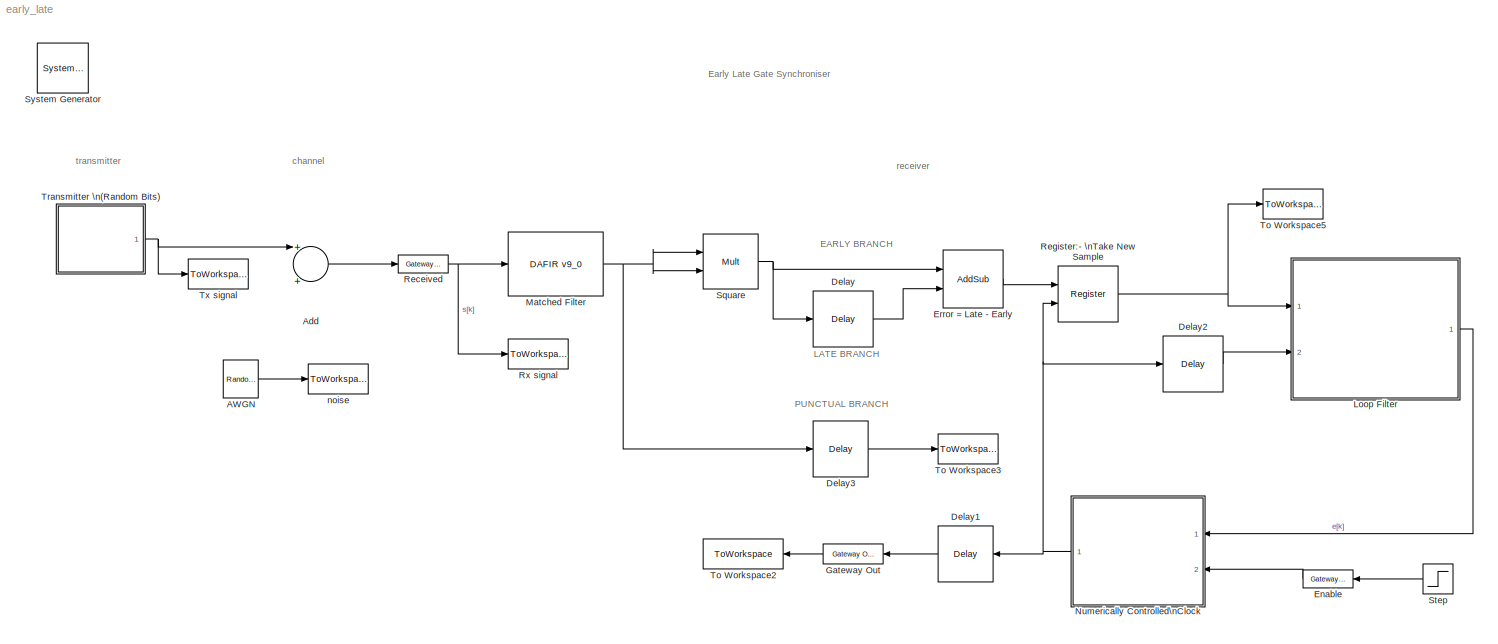
MODEL early_late
KIND model
CONFIG PreLoadFcn = Fs = 1;
CONFIG StopFcn = figure(1)\nplot(ted_output);\nlegend('Timing Error Detector Output',1);\nxlabel('Samples');\nylabel('Amplitude');\n\nfigure(2)\nhold off\nplot(Vss_nom,'b');\nhold on\nplot(Vss,'r');\nlegend('Nominal SS', 'Adj. SS',0);\nxlabel('Samples');\nylabel('Step Size');\n\nfigure(3)\nhold off\nplot(mf_signal,'k-');\nhold on\nplot(sample_points,'r-o');\nplot(zeros(1,length(mf_signal)),'k--');\nlegend('Input',...<+126ch>
BLOCK [Reference]  System Generator  REF=xbsIndex_r4/ System Generator
  AttributesFormatString = System\\nGenerator
  FunctionWithSeparateData = off
  Ports = []
  RTWMemSecDataConstants = Inherit from model
  RTWMemSecDataInternal = Inherit from model
  RTWMemSecDataParameters = Inherit from model
  RTWMemSecFuncExecute = Inherit from model
  RTWMemSecFuncInitTerm = Inherit from model
  ShowPortLabels = FromPortIcon
  SourceBlock = xbsIndex_r4/ System Generator
  SourceType = Xilinx System Generator Block
  SystemSampleTime = -1
  Tag = genX
  UserData = DataTag0
  UserDataPersistent = on
  block_type = sysgen
  block_version = 9.2.01
  clock_wrapper = Clock Enables
  core_generation = According to Block Masks
  dbl_ovrd = According to Block Masks
  dcm_input_clock_period = 100
  deprecated_control = off
  directory = ./netlist
  eval_field = 0
  has_advanced_control = 0
  incr_netlist = off
  infoedit = System Generator
  package = ff668
  part = xc4vsx35
  run_coregen = off
  sg_icon_stat = 51,50,-1,-1,red,beige,0,07734
  sg_mask_display = fprintf('','COMMENT: begin icon graphics');\npatch([0 51 51 0 ],[0 0 50 50 ],[0.93 0.92 0.86]);\npatch([12 4 16 4 12 25 29 33 47 36 25 17 29 17 25 36 47 33 29 25 12 ],[5 13 25 37 45 45 41 45 45 34 45 37 25 13 5 16 5 5 9 5 5 ],[0.6 0.2 0.25]);\nplot([0 0 51 51 0 ],[0 50 50 0 0 ]);\nfprintf('','COMMENT: end icon graphics');\nfprintf('','COMMENT: begin icon text');\nfprintf('','COMMENT: end icon text...<+5ch>
  sggui_pos = -1,-1,-1,-1
  simulink_period = 1/Fs
  speed = -10
  synthesis_tool = XST
  sysclk_period = 10
  testbench = off
  trim_vbits = Everywhere in SubSystem
  xilinxfamily = virtex4
BLOCK [Reference] AWGN  REF=dspsrcs4/Random\nSource
  CltLength = 12
  DataType = Single
  Diagnostics = AllowInheritedTsInSrc
  IsInherit = on
  MaxVal = 1
  MeanVal = 0
  MinVal = 0
  NormMethod = Ziggurat
  OutComplex = Real
  Ports = [0, 1]
  RepMode = Not repeatable
  SampFrame = 1
  SampMode = Discrete
  SampTime = 1
  SourceBlock = dspsrcs4/Random\nSource
  SourceType = Random Source
  SrcType = Gaussian
  UserData = DataTag1
  UserDataPersistent = on
  VarVal = 0.2
  rawSeed = 1
BLOCK [Sum] Add
  CollapseMode = All dimensions
  InputSameDT = off
  OutDataTypeMode = double
  OutScaling = 2^-10
  Ports = [2, 1]
  SaturateOnIntegerOverflow = off
BLOCK [Reference] Delay  REF=xbsIndex_r4/Delay
  Ports = [1, 1]
  SourceBlock = xbsIndex_r4/Delay
  SourceType = Xilinx Delay Block
  block_type = delay
  block_version = 9.2.01
  dbl_ovrd = off
  en = off
  has_advanced_control = 0
  infoedit = Hardware notes: A delay line is a chain, each link of which is an SRL16 followed by a flip-flop.
  latency = 10
  reg_retiming = off
  sg_icon_stat = 60,56,1,1,white,blue,0,fc1feff4,right
  sg_mask_display = fprintf('','COMMENT: begin icon graphics');\npatch([0 60 60 0 ],[0 0 56 56 ],[0.77 0.82 0.91]);\npatch([15 6 19 6 15 30 34 38 54 41 29 20 32 20 29 41 54 38 34 30 15 ],[6 15 28 41 50 50 46 50 50 37 49 40 28 16 7 19 6 6 10 6 6 ],[0.98 0.96 0.92]);\nplot([0 60 60 0 0 ],[0 0 56 56 0 ]);\nfprintf('','COMMENT: end icon graphics');\nfprintf('','COMMENT: begin icon text');\ncolor('black');disp('z^{-10}','...<+56ch>
  sggui_pos = 20,20,348,255
  xl_area = [0,0,0,0,0,0,0]
  xl_use_area = off
BLOCK [Reference] Delay1  REF=xbsIndex_r4/Delay
  Ports = [1, 1]
  SourceBlock = xbsIndex_r4/Delay
  SourceType = Xilinx Delay Block
  block_type = delay
  block_version = 9.2.01
  dbl_ovrd = off
  en = off
  has_advanced_control = 0
  infoedit = Hardware notes: A delay line is a chain, each link of which is an SRL16 followed by a flip-flop.
  latency = 10
  reg_retiming = off
  sg_icon_stat = 55,56,1,1,white,blue,0,fc1feff4,left
  sg_mask_display = fprintf('','COMMENT: begin icon graphics');\npatch([0 60 60 0 ],[0 0 56 56 ],[0.77 0.82 0.91]);\npatch([15 6 19 6 15 30 34 38 54 41 29 20 32 20 29 41 54 38 34 30 15 ],[6 15 28 41 50 50 46 50 50 37 49 40 28 16 7 19 6 6 10 6 6 ],[0.98 0.96 0.92]);\nplot([0 60 60 0 0 ],[0 0 56 56 0 ]);\nfprintf('','COMMENT: end icon graphics');\nfprintf('','COMMENT: begin icon text');\ncolor('black');disp('z^{-10}','...<+56ch>
  sggui_pos = 20,20,348,255
  xl_area = [0,0,0,0,0,0,0]
  xl_use_area = off
BLOCK [Reference] Delay2  REF=xbsIndex_r4/Delay
  Ports = [1, 1]
  SourceBlock = xbsIndex_r4/Delay
  SourceType = Xilinx Delay Block
  block_type = delay
  block_version = 9.2.01
  dbl_ovrd = off
  en = off
  has_advanced_control = 0
  infoedit = Hardware notes: A delay line is a chain, each link of which is an SRL16 followed by a flip-flop.
  latency = 1
  reg_retiming = off
  sg_icon_stat = 60,56,1,1,white,blue,0,fc531c0e,right
  sg_mask_display = fprintf('','COMMENT: begin icon graphics');\npatch([0 60 60 0 ],[0 0 56 56 ],[0.77 0.82 0.91]);\npatch([15 6 19 6 15 30 34 38 54 41 29 20 32 20 29 41 54 38 34 30 15 ],[6 15 28 41 50 50 46 50 50 37 49 40 28 16 7 19 6 6 10 6 6 ],[0.98 0.96 0.92]);\nplot([0 60 60 0 0 ],[0 0 56 56 0 ]);\nfprintf('','COMMENT: end icon graphics');\nfprintf('','COMMENT: begin icon text');\ncolor('black');disp('z^{-1}','t...<+55ch>
  sggui_pos = 20,20,348,255
  xl_area = [0,0,0,0,0,0,0]
  xl_use_area = off
BLOCK [Reference] Delay3  REF=xbsIndex_r4/Delay
  Ports = [1, 1]
  SourceBlock = xbsIndex_r4/Delay
  SourceType = Xilinx Delay Block
  block_type = delay
  block_version = 9.2.01
  dbl_ovrd = off
  en = off
  has_advanced_control = 0
  infoedit = Hardware notes: A delay line is a chain, each link of which is an SRL16 followed by a flip-flop.
  latency = 5
  reg_retiming = off
  sg_icon_stat = 55,56,1,1,white,blue,0,4edfc01c,right
  sg_mask_display = fprintf('','COMMENT: begin icon graphics');\npatch([0 60 60 0 ],[0 0 56 56 ],[0.77 0.82 0.91]);\npatch([15 6 19 6 15 30 34 38 54 41 29 20 32 20 29 41 54 38 34 30 15 ],[6 15 28 41 50 50 46 50 50 37 49 40 28 16 7 19 6 6 10 6 6 ],[0.98 0.96 0.92]);\nplot([0 60 60 0 0 ],[0 0 56 56 0 ]);\nfprintf('','COMMENT: end icon graphics');\nfprintf('','COMMENT: begin icon text');\ncolor('black');disp('z^{-5}','t...<+55ch>
  sggui_pos = 20,20,348,255
  xl_area = [0,0,0,0,0,0,0]
  xl_use_area = off
BLOCK [Reference] Enable  REF=xbsIndex_r4/Gateway In
  LOCs = {}
  Ports = [1, 1]
  SourceBlock = xbsIndex_r4/Gateway In
  SourceType = Xilinx Gateway In Block
  arith_type = Boolean
  bin_pt = 14
  block_type = gatewayin
  block_version = 9.2.01
  dbl_ovrd = off
  has_advanced_control = 0
  infoedit = Gateway in block.  Converts inputs of type Simulink integer, double and fixed point to  Xilinx fixed point type.<P><P>Hardware notes:  In hardware these blocks become top level input ports.
  locs_specified = off
  n_bits = 16
  overflow = Saturate
  period = 1/Fs
  quantization = Round  (unbiased: +/- Inf)
  sg_icon_stat = 50,18,1,1,white,yellow,0,bc55d28f,left
  sg_mask_display = fprintf('','COMMENT: begin icon graphics');\npatch([0 65 65 0 ],[0 0 20 20 ],[0.95 0.93 0.65]);\npatch([27 24 29 24 27 32 33 34 40 36 32 29 34 29 32 36 40 34 33 32 27 ],[2 5 10 15 18 18 17 18 18 14 18 15 10 5 2 6 2 2 3 2 2 ],[0.98 0.96 0.92]);\nplot([0 65 65 0 0 ],[0 0 20 20 0 ]);\nfprintf('','COMMENT: end icon graphics');\nfprintf('','COMMENT: begin icon text');\ncolor('black');port_label('input'...<+131ch>
  sggui_pos = 20,20,348,406
  timing_constraint = None
  xl_area = [0,0,0,0,0,0,0]
  xl_use_area = off
BLOCK [Reference] Error = Late - Early  REF=xbsIndex_r4/AddSub
  Ports = [2, 1]
  SourceBlock = xbsIndex_r4/AddSub
  SourceType = Xilinx Adder/Subtractor Block
  arith_type = Unsigned
  bin_pt = 14
  block_type = addsub
  block_version = 9.2.01
  dbl_ovrd = off
  en = off
  has_advanced_control = 0
  latency = 0
  mode = Subtraction
  n_bits = 16
  overflow = Wrap
  pipelined = off
  precision = Full
  quantization = Truncate
  sg_icon_stat = 60,58,1,1,white,blue,0,46b4c804,right
  sg_mask_display = fprintf('','COMMENT: begin icon graphics');\npatch([0 60 60 0 ],[0 0 58 58 ],[0.77 0.82 0.91]);\npatch([15 5 19 5 15 30 34 38 54 41 29 20 34 20 29 41 54 38 34 30 15 ],[6 16 30 44 54 54 50 54 54 41 53 44 30 16 7 19 6 6 10 6 6 ],[0.98 0.96 0.92]);\nplot([0 60 60 0 0 ],[0 0 58 58 0 ]);\nfprintf('','COMMENT: end icon graphics');\nfprintf('','COMMENT: begin icon text');\ncolor('black');port_label('inpu...<+163ch>  <repeated x5 — deduplicated; at blocks: Error = Late - Early, Add, AddSub, AddSub1, a - b3>
  sggui_pos = 20,20,348,307
  use_behavioral_HDL = off
  use_carryin = off
  use_carryout = off
  use_rpm = on
  xl_area = [0,0,0,0,0,0,0]
  xl_use_area = off
BLOCK [Reference] Gateway Out  REF=xbsIndex_r4/Gateway Out
  LOCs = {}
  Ports = [1, 1]
  SourceBlock = xbsIndex_r4/Gateway Out
  SourceType = Xilinx Gateway Out Block
  block_type = gatewayout
  block_version = 9.2.01
  has_advanced_control = 0
  hdl_port = on
  infoedit = Gateway out block.  Converts Xilinx fixed point inputs into ouputs of type Simulink integer, double, or fixed point.<P><P>Hardware notes:  In hardware these blocks become top level output ports or are discarded, depending on how they are configured.
  locs_specified = off
  sg_icon_stat = 60,20,1,1,white,yellow,0,38220381,left
  sg_mask_display = fprintf('','COMMENT: begin icon graphics');\npatch([0 60 60 0 ],[0 0 20 20 ],[0.95 0.93 0.65]);\npatch([24 21 26 21 24 29 30 31 37 33 29 26 31 26 29 33 37 31 30 29 24 ],[2 5 10 15 18 18 17 18 18 14 18 15 10 5 2 6 2 2 3 2 2 ],[0.98 0.96 0.92]);\nplot([0 60 60 0 0 ],[0 0 20 20 0 ]);\nfprintf('','COMMENT: end icon graphics');\nfprintf('','COMMENT: begin icon text');\ncolor('black');port_label('input'...<+132ch>
  sggui_pos = -1,-1,-1,-1
  timing_constraint = None
  xl_area = [0,0,0,0,0,0,0]
  xl_use_area = off
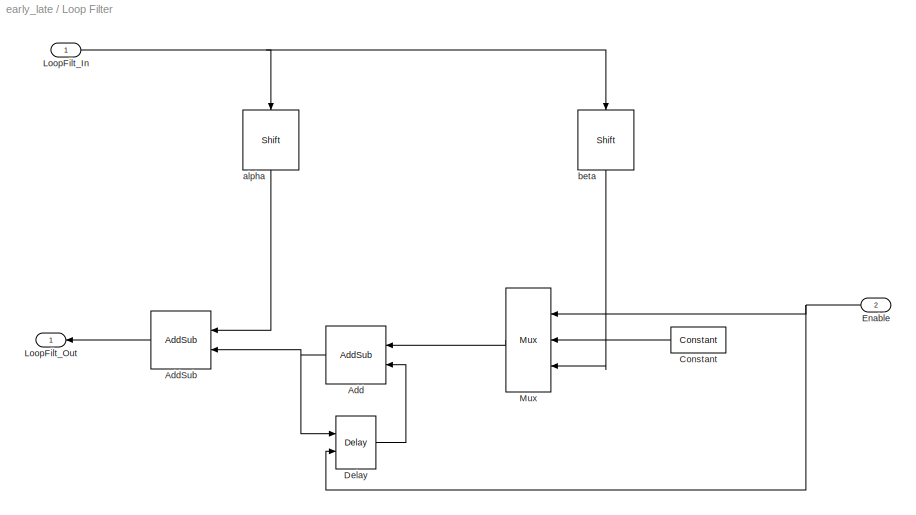
BLOCK [SubSystem] Loop Filter
  FunctionWithSeparateData = off
  MaskCallbackString = |||
  MaskDescription = The loop filter contains two paths: a proportional path and an integral path. These are characterised by coefficients Alpha and Beta, respectively. Multiplications by these coefficients are both realised via shifts, for hardware efficiency reasons.\n\nMask to be completed... not yet straight on the wordlength implications and the choices that should be presented via the mask.
  MaskEnableString = on,on,on,on
  MaskHideContents = off
  MaskIconFrame = on
  MaskIconOpaque = on
  MaskIconRotate = none
  MaskIconUnits = autoscale
  MaskInitialization = if extend_wl == true\n    alpha_shift_wl = phase_det_word + alpha_n;\n    beta_shift_wl = phase_det_word + beta_n;\nelse\n    alpha_shift_wl = phase_det_word;\n    beta_shift_wl = phase_det_word;\nend
  MaskPromptString = Alpha (bits to shift right by)|Beta (bits to shift right by)|Input wordlength|Retain full precision?
  MaskStyleString = edit,edit,edit,checkbox
  MaskTabNameString = ,,,
  MaskToolTipString = on,on,on,on
  MaskTunableValueString = on,on,on,on
  MaskType = Loop Filter Parameters
  MaskValueString = 3|7|16|on
  MaskVarAliasString = ,,,
  MaskVariables = alpha_n=@1;beta_n=@2;phase_det_word=@3;extend_wl=@4;
  MaskVisibilityString = on,on,on,on
  MinAlgLoopOccurrences = off
  Ports = [2, 1]
  RTWSystemCode = Auto
BLOCK [Reference] Loop Filter/Add  REF=xbsIndex_r4/AddSub
  Ports = [2, 1]
  SourceBlock = xbsIndex_r4/AddSub
  SourceType = Xilinx Adder/Subtractor Block
  arith_type = Signed  (2's comp)
  bin_pt = 20
  block_type = addsub
  block_version = 9.2.01
  dbl_ovrd = off
  en = off
  has_advanced_control = 0
  latency = 0
  mode = Addition
  n_bits = 40
  overflow = Wrap
  pipelined = off
  precision = User Defined
  quantization = Round  (unbiased: +/- Inf)
  sg_icon_stat = 60,58,1,1,white,blue,0,36a47907,right
  sggui_pos = 20,20,348,307
  use_behavioral_HDL = off
  use_carryin = off
  use_carryout = off
  use_rpm = on
  xl_area = [0,0,0,0,0,0,0]
  xl_use_area = off
BLOCK [Reference] Loop Filter/AddSub  REF=xbsIndex_r4/AddSub
  Ports = [2, 1]
  SourceBlock = xbsIndex_r4/AddSub
  SourceType = Xilinx Adder/Subtractor Block
  arith_type = Signed  (2's comp)
  bin_pt = 14
  block_type = addsub
  block_version = 9.2.01
  dbl_ovrd = off
  en = off
  has_advanced_control = 0
  latency = 0
  mode = Addition
  n_bits = 20
  overflow = Wrap
  pipelined = off
  precision = Full
  quantization = Round  (unbiased: +/- Inf)
  sg_icon_stat = 60,58,1,1,white,blue,0,36a47907,right
  sggui_pos = 20,20,348,307
  use_behavioral_HDL = off
  use_carryin = off
  use_carryout = off
  use_rpm = on
  xl_area = [0,0,0,0,0,0,0]
  xl_use_area = off
BLOCK [Reference] Loop Filter/Constant  REF=xbsIndex_r4/Constant
  Ports = [0, 1]
  SourceBlock = xbsIndex_r4/Constant
  SourceType = Xilinx Constant Block Block
  arith_type = Signed (2's comp)
  bin_pt = 0
  block_type = constant
  block_version = 9.2.01
  carry = CIN
  const = 0
  dbl_ovrd = off
  dsp48_infoedit = The use of this block for DSP48 instructions is deprecated.  Please use the Opmode block.
  equ = P=C
  explicit_period = off
  has_advanced_control = 0
  inp1 = P
  inp2 = PCIN>>17
  n_bits = 2
  opr = +
  opselect = C
  period = 1
  sg_icon_stat = 55,26,1,1,white,blue,0,72d575a1,right
  sg_mask_display = fprintf('','COMMENT: begin icon graphics');\npatch([0 55 55 0 ],[0 0 26 26 ],[0.77 0.82 0.91]);\npatch([20 16 22 16 20 27 29 31 38 32 26 22 28 22 26 32 38 31 29 27 20 ],[3 7 13 19 23 23 21 23 23 17 23 19 13 7 3 9 3 3 5 3 3 ],[0.98 0.96 0.92]);\nplot([0 55 55 0 0 ],[0 0 26 26 0 ]);\nfprintf('','COMMENT: end icon graphics');\nfprintf('','COMMENT: begin icon text');\ncolor('black');port_label('output...<+50ch>
  sggui_pos = 20,20,400,346
BLOCK [Reference] Loop Filter/Delay  REF=xbsIndex_r4/Delay
  Ports = [2, 1]
  SourceBlock = xbsIndex_r4/Delay
  SourceType = Xilinx Delay Block
  block_type = delay
  block_version = 9.2.01
  dbl_ovrd = off
  en = on
  has_advanced_control = 0
  infoedit = Hardware notes: A delay line is a chain, each link of which is an SRL16 followed by a flip-flop.
  latency = 1
  reg_retiming = off
  sg_icon_stat = 40,53,1,1,white,blue,0,9c7d2b66,right
  sg_mask_display = fprintf('','COMMENT: begin icon graphics');\npatch([0 40 40 0 ],[0 0 53 53 ],[0.77 0.82 0.91]);\npatch([10 3 12 3 10 21 24 27 38 29 20 14 24 14 20 29 38 27 24 21 10 ],[11 18 27 36 43 43 40 43 43 34 43 37 27 17 11 20 11 11 14 11 11 ],[0.98 0.96 0.92]);\nplot([0 40 40 0 0 ],[0 0 53 53 0 ]);\nfprintf('','COMMENT: end icon graphics');\nfprintf('','COMMENT: begin icon text');\ncolor('black');port_label...<+105ch>
  sggui_pos = 20,20,348,255
  xl_area = [0,0,0,0,0,0,0]
  xl_use_area = off
BLOCK [Inport] Loop Filter/Enable
  IconDisplay = Port number
  Port = 2
BLOCK [Inport] Loop Filter/LoopFilt_In
  IconDisplay = Port number
BLOCK [Outport] Loop Filter/LoopFilt_Out
  BusOutputAsStruct = off
  IconDisplay = Port number
BLOCK [Reference] Loop Filter/Mux  REF=xbsIndex_r4/Mux
  Ports = [3, 1]
  SourceBlock = xbsIndex_r4/Mux
  SourceType = Xilinx Bus Multiplexer Block
  arith_type = Unsigned
  bin_pt = 14
  block_type = mux
  block_version = 9.2.01
  dbl_ovrd = off
  en = off
  has_advanced_control = 0
  inputs = 2
  latency = 0
  n_bits = 16
  overflow = Wrap
  precision = Full
  quantization = Truncate
  sg_icon_stat = 45,104,1,1,white,blue,3,613f58e1,left
  sg_mask_display = fprintf('','COMMENT: begin icon graphics');\npatch([0 45 45 0 ],[0 14.8571 89.1429 104 ],[0.77 0.82 0.91]);\npatch([10 3 14 3 10 22 25 28 41 31 21 14 25 14 21 31 41 28 25 22 10 ],[34 41 52 63 70 70 67 70 70 60 70 63 52 41 34 44 34 34 37 34 34 ],[0.98 0.96 0.92]);\nplot([0 45 45 0 0 ],[0 14.8571 89.1429 104 0 ]);\nfprintf('','COMMENT: end icon graphics');\nfprintf('','COMMENT: begin icon text');\nc...<+218ch>
  sggui_pos = -1,-1,-1,-1
  xl_area = [0,0,0,0,0,0,0]
  xl_use_area = off
BLOCK [Reference] Loop Filter/alpha  REF=xbsIndex_r4/Shift
  Ports = [1, 1]
  SourceBlock = xbsIndex_r4/Shift
  SourceType = Xilinx Binary Shift Operator Block
  arith_type = Signed  (2's comp)
  bin_pt = alpha_shift_wl-2
  block_type = shift
  block_version = 9.2.01
  dbl_ovrd = off
  en = off
  has_advanced_control = 0
  infoedit = Hardware notes: In hardware this block costs nothing if full output precision is used.
  latency = 0
  n_bits = alpha_shift_wl
  overflow = Wrap
  precision = User Defined
  quantization = Round  (unbiased: +/- Inf)
  sg_icon_stat = 56,60,1,1,white,blue,0,95b928d4,right
  sg_mask_display = fprintf('','COMMENT: begin icon graphics');\npatch([0 60 60 0 ],[0 0 56 56 ],[0.77 0.82 0.91]);\npatch([15 6 19 6 15 30 34 38 54 41 29 20 32 20 29 41 54 38 34 30 15 ],[6 15 28 41 50 50 46 50 50 37 49 40 28 16 7 19 6 6 10 6 6 ],[0.98 0.96 0.92]);\nplot([0 60 60 0 0 ],[0 0 56 56 0 ]);\nfprintf('','COMMENT: end icon graphics');\nfprintf('','COMMENT: begin icon text');\ncolor('black');disp('\\newline\...<+85ch>  <repeated x3 — deduplicated; at blocks: alpha, beta, Shift>
  sggui_pos = 20,20,348,345
  shift_bits = alpha_n
  shift_dir = Right
  xl_area = [0,0,0,0,0,0,0]
  xl_use_area = off
BLOCK [Reference] Loop Filter/beta  REF=xbsIndex_r4/Shift
  Ports = [1, 1]
  SourceBlock = xbsIndex_r4/Shift
  SourceType = Xilinx Binary Shift Operator Block
  arith_type = Signed  (2's comp)
  bin_pt = beta_shift_wl-2
  block_type = shift
  block_version = 9.2.01
  dbl_ovrd = off
  en = off
  has_advanced_control = 0
  infoedit = Hardware notes: In hardware this block costs nothing if full output precision is used.
  latency = 0
  n_bits = beta_shift_wl
  overflow = Wrap
  precision = User Defined
  quantization = Round  (unbiased: +/- Inf)
  sg_icon_stat = 56,60,1,1,white,blue,0,3849cba9,right
  sggui_pos = 20,20,348,345
  shift_bits = beta_n
  shift_dir = Right
  xl_area = [0,0,0,0,0,0,0]
  xl_use_area = off
BLOCK [Reference] Matched Filter   REF=xbsIndex_r4/DAFIR v9_0 
  Ports = [1, 1]
  SourceBlock = xbsIndex_r4/DAFIR v9_0
  SourceType = Xilinx Finite Impulse Response Filter Block
  block_type = fir
  block_version = 9.2.01
  coef = (1/20)*ones(1,20)
  coef_bin_pt = 14
  coef_n_bits = 16
  dbl_ovrd = off
  explicit_period = off
  has_advanced_control = 0
  infoedit = Hardware notes: Implemented using distributed arithmetic (DA).  The hardware over sampling rate determines the degree of parallelism.  A rate of one produces a fully parallel DA filter.  A rate of n (resp., n+1) for an n-bit input signal produces a fully serial implementation for a non-symmetric (resp., symmetric) impulse response.  Intermediate values produce implementations with intermediate lev...<+19ch>
  latency = 1
  num_channels = 1
  over_sample = 1
  period = 1
  polyphase_behavior = Single Rate:  sample in - sample out
  reload = off
  rst = off
  serial_input = off
  sg_icon_stat = 95,64,1,1,white,blue,0,8d37488d,right
  sg_mask_display = fprintf('','COMMENT: begin icon graphics');\npatch([0 60 60 0 ],[0 0 62 62 ],[0.77 0.82 0.91]);\npatch([14 4 18 4 14 30 34 38 55 42 29 20 35 20 29 42 55 38 34 30 14 ],[7 17 31 45 55 55 51 55 55 42 55 46 31 16 7 20 7 7 11 7 7 ],[0.98 0.96 0.92]);\nplot([0 60 60 0 0 ],[0 0 62 62 0 ]);\nfprintf('','COMMENT: end icon graphics');\nfprintf('','COMMENT: begin icon text');\ncolor('black');port_label('inpu...<+129ch>
  sggui_pos = 20,20,348,503
  structure = Inferred from Coefficients
  use_isim = 0
  valids = off
  xl_area = [0,0,0,0,0,0,0]
  xl_use_area = off
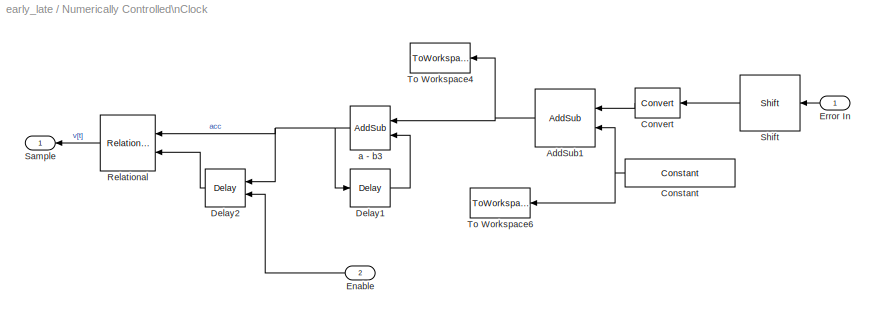
BLOCK [SubSystem] Numerically Controlled\nClock
  FunctionWithSeparateData = off
  MaskCallbackString = |||
  MaskDescription = This component operates similarly to an NCO. Its \"centre\" rate is supplied by the user, defining the nominal step size applied to an accumulator. In operation, the control input \"Error In\" supplies a step size adjustment, which is applied to the nominal step size and input to an accumulator. When the accumulator wraps, a sample is taken (i.e. a single cycle 1 output).
  MaskEnableString = on,on,on,on
  MaskHideContents = off
  MaskIconFrame = on
  MaskIconOpaque = on
  MaskIconRotate = none
  MaskIconUnits = autoscale
  MaskInitialization = delta_mu_des = (F_res * N) / F_s;\nfract_bits = ceil(abs((log10(delta_mu_des) / log10(2))));\nwhole_bits = round(log(N)/log(2));\nmu_nom = (F_nom * N) / F_s;\nF_res_act = F_s / ((2^fract_bits) * N);
  MaskPromptString = Counter Size|Desired Frequency Resolution (Hz)|Nominal Rate/Frequency|Sampling Frequency (Hz)
  MaskStyleString = edit,edit,edit,edit
  MaskTabNameString = ,,,
  MaskToolTipString = on,on,on,on
  MaskTunableValueString = on,on,on,on
  MaskType = Numerically Controlled Clock (NCC)
  MaskValueString = 256|0.000001|1/20|Fs
  MaskVarAliasString = ,,,
  MaskVariables = N=@1;F_res=@2;F_nom=@3;F_s=@4;
  MaskVisibilityString = on,on,on,on
  MinAlgLoopOccurrences = off
  Ports = [2, 1]
  RTWSystemCode = Auto
BLOCK [Reference] Numerically Controlled\nClock/AddSub1  REF=xbsIndex_r4/AddSub
  Ports = [2, 1]
  SourceBlock = xbsIndex_r4/AddSub
  SourceType = Xilinx Adder/Subtractor Block
  arith_type = Unsigned
  bin_pt = fract_bits
  block_type = addsub
  block_version = 9.2.01
  dbl_ovrd = off
  en = off
  has_advanced_control = 0
  latency = 0
  mode = Addition
  n_bits = whole_bits + fract_bits
  overflow = Wrap
  pipelined = off
  precision = User Defined
  quantization = Round  (unbiased: +/- Inf)
  sg_icon_stat = 60,58,1,1,white,blue,0,36a47907,right
  sggui_pos = 20,20,348,307
  use_behavioral_HDL = off
  use_carryin = off
  use_carryout = off
  use_rpm = on
  xl_area = [0,0,0,0,0,0,0]
  xl_use_area = off
BLOCK [Reference] Numerically Controlled\nClock/Constant  REF=xbsIndex_r4/Constant
  Ports = [0, 1]
  SourceBlock = xbsIndex_r4/Constant
  SourceType = Xilinx Constant Block Block
  arith_type = Unsigned
  bin_pt = fract_bits
  block_type = constant
  block_version = 9.2.01
  carry = CIN
  const = mu_nom
  dbl_ovrd = off
  dsp48_infoedit = The use of this block for DSP48 instructions is deprecated.  Please use the Opmode block.
  equ = P=C
  explicit_period = on
  has_advanced_control = 0
  inp1 = P
  inp2 = PCIN>>17
  n_bits = whole_bits + fract_bits
  opr = +
  opselect = C
  period = 1/Fs
  sg_icon_stat = 110,28,1,1,white,blue,0,e05f57d8,right
  sg_mask_display = fprintf('','COMMENT: begin icon graphics');\npatch([0 55 55 0 ],[0 0 26 26 ],[0.77 0.82 0.91]);\npatch([20 16 22 16 20 27 29 31 38 32 26 22 28 22 26 32 38 31 29 27 20 ],[3 7 13 19 23 23 21 23 23 17 23 19 13 7 3 9 3 3 5 3 3 ],[0.98 0.96 0.92]);\nplot([0 55 55 0 0 ],[0 0 26 26 0 ]);\nfprintf('','COMMENT: end icon graphics');\nfprintf('','COMMENT: begin icon text');\ncolor('black');port_label('output...<+64ch>
  sggui_pos = 20,20,400,346
BLOCK [Reference] Numerically Controlled\nClock/Convert  REF=xbsIndex_r4/Convert
  Ports = [1, 1]
  SourceBlock = xbsIndex_r4/Convert
  SourceType = Xilinx Type Converter Block
  arith_type = Signed  (2's comp)
  bin_pt = fract_bits
  block_type = convert
  block_version = 9.2.01
  dbl_ovrd = off
  has_advanced_control = 0
  infoedit = Hardware notes: rounding and saturating require hardware resources; truncating and wrapping do not.
  latency = 0
  n_bits = whole_bits+fract_bits
  overflow = Wrap
  pipeline = off
  quantization = Truncate
  sg_icon_stat = 45,30,1,1,white,blue,0,74901e60,right
  sg_mask_display = fprintf('','COMMENT: begin icon graphics');\npatch([0 45 45 0 ],[0 0 30 30 ],[0.77 0.82 0.91]);\npatch([15 10 17 10 15 23 25 27 35 28 22 17 23 17 22 28 35 27 25 23 15 ],[3 8 15 22 27 27 25 27 27 20 26 21 15 9 4 10 3 3 5 3 3 ],[0.98 0.96 0.92]);\nplot([0 45 45 0 0 ],[0 0 30 30 0 ]);\nfprintf('','COMMENT: end icon graphics');\nfprintf('','COMMENT: begin icon text');\ncolor('black');port_label('outpu...<+54ch>
  sggui_pos = 20,20,461,334
  xl_area = [0,0,0,0,0,0,0]
  xl_use_area = off
BLOCK [Reference] Numerically Controlled\nClock/Delay1  REF=xbsIndex_r4/Delay
  Ports = [1, 1]
  SourceBlock = xbsIndex_r4/Delay
  SourceType = Xilinx Delay Block
  block_type = delay
  block_version = 9.2.01
  dbl_ovrd = off
  en = off
  has_advanced_control = 0
  infoedit = Hardware notes: A delay line is a chain, each link of which is an SRL16 followed by a flip-flop.
  latency = 1
  reg_retiming = off
  sg_icon_stat = 40,38,1,1,white,blue,0,fc531c0e,right
  sg_mask_display = fprintf('','COMMENT: begin icon graphics');\npatch([0 60 60 0 ],[0 0 56 56 ],[0.77 0.82 0.91]);\npatch([15 6 19 6 15 30 34 38 54 41 29 20 32 20 29 41 54 38 34 30 15 ],[6 15 28 41 50 50 46 50 50 37 49 40 28 16 7 19 6 6 10 6 6 ],[0.98 0.96 0.92]);\nplot([0 60 60 0 0 ],[0 0 56 56 0 ]);\nfprintf('','COMMENT: end icon graphics');\nfprintf('','COMMENT: begin icon text');\ncolor('black');disp('z^{-1}','t...<+55ch>
  sggui_pos = 20,20,348,255
  xl_area = [0,0,0,0,0,0,0]
  xl_use_area = off
BLOCK [Reference] Numerically Controlled\nClock/Delay2  REF=xbsIndex_r4/Delay
  Ports = [2, 1]
  SourceBlock = xbsIndex_r4/Delay
  SourceType = Xilinx Delay Block
  block_type = delay
  block_version = 9.2.01
  dbl_ovrd = off
  en = on
  has_advanced_control = 0
  infoedit = Hardware notes: A delay line is a chain, each link of which is an SRL16 followed by a flip-flop.
  latency = 1
  reg_retiming = off
  sg_icon_stat = 40,38,1,1,white,blue,0,9c7d2b66,right
  sg_mask_display = fprintf('','COMMENT: begin icon graphics');\npatch([0 60 60 0 ],[0 0 56 56 ],[0.77 0.82 0.91]);\npatch([15 6 19 6 15 30 34 38 54 41 29 20 32 20 29 41 54 38 34 30 15 ],[6 15 28 41 50 50 46 50 50 37 49 40 28 16 7 19 6 6 10 6 6 ],[0.98 0.96 0.92]);\nplot([0 60 60 0 0 ],[0 0 56 56 0 ]);\nfprintf('','COMMENT: end icon graphics');\nfprintf('','COMMENT: begin icon text');\ncolor('black');port_label('inpu...<+99ch>
  sggui_pos = 20,20,348,255
  xl_area = [0,0,0,0,0,0,0]
  xl_use_area = off
BLOCK [Inport] Numerically Controlled\nClock/Enable
  IconDisplay = Port number
  Port = 2
BLOCK [Inport] Numerically Controlled\nClock/Error In
  IconDisplay = Port number
BLOCK [Reference] Numerically Controlled\nClock/Relational  REF=xbsIndex_r4/Relational
  Ports = [2, 1]
  SourceBlock = xbsIndex_r4/Relational
  SourceType = Xilinx Arithmetic Relational Operator Block
  block_type = relational
  block_version = 9.2.01
  dbl_ovrd = off
  en = off
  has_advanced_control = 0
  latency = 1
  mode = a<b
  sg_icon_stat = 55,56,1,1,white,blue,0,3ac94b81,right
  sg_mask_display = fprintf('','COMMENT: begin icon graphics');\npatch([0 55 55 0 ],[0 0 56 56 ],[0.77 0.82 0.91]);\npatch([13 4 17 4 13 28 32 36 52 40 28 19 32 19 28 40 52 36 32 28 13 ],[6 15 28 41 50 50 46 50 50 38 50 41 28 15 6 18 6 6 10 6 6 ],[0.98 0.96 0.92]);\nplot([0 55 55 0 0 ],[0 0 56 56 0 ]);\nfprintf('','COMMENT: end icon graphics');\nfprintf('','COMMENT: begin icon text');\ncolor('black');port_label('inpu...<+168ch>
  sggui_pos = 20,20,348,193
  xl_area = [0,0,0,0,0,0,0]
  xl_use_area = off
BLOCK [Outport] Numerically Controlled\nClock/Sample
  BusOutputAsStruct = off
  IconDisplay = Port number
BLOCK [Reference] Numerically Controlled\nClock/Shift  REF=xbsIndex_r4/Shift
  Ports = [1, 1]
  SourceBlock = xbsIndex_r4/Shift
  SourceType = Xilinx Binary Shift Operator Block
  arith_type = Signed  (2's comp)
  bin_pt = 14
  block_type = shift
  block_version = 9.2.01
  dbl_ovrd = off
  en = off
  has_advanced_control = 0
  infoedit = Hardware notes: In hardware this block costs nothing if full output precision is used.
  latency = 0
  n_bits = 16
  overflow = Wrap
  precision = Full
  quantization = Truncate
  sg_icon_stat = 60,56,1,1,white,blue,0,61e40a9e,right
  sggui_pos = 20,20,348,345
  shift_bits = 4
  shift_dir = Left
  xl_area = [0,0,0,0,0,0,0]
  xl_use_area = off
BLOCK [ToWorkspace] Numerically Controlled\nClock/To Workspace4
  MaxDataPoints = inf
  SampleTime = -1
  SaveFormat = Array
  VariableName = Vss
BLOCK [ToWorkspace] Numerically Controlled\nClock/To Workspace6
  MaxDataPoints = inf
  SampleTime = -1
  SaveFormat = Array
  VariableName = Vss_nom
BLOCK [Reference] Numerically Controlled\nClock/a - b3  REF=xbsIndex_r4/AddSub
  Ports = [2, 1]
  SourceBlock = xbsIndex_r4/AddSub
  SourceType = Xilinx Adder/Subtractor Block
  arith_type = Unsigned
  bin_pt = fract_bits
  block_type = addsub
  block_version = 9.2.01
  dbl_ovrd = off
  en = off
  has_advanced_control = 0
  latency = 0
  mode = Addition
  n_bits = whole_bits + fract_bits
  overflow = Wrap
  pipelined = off
  precision = User Defined
  quantization = Truncate
  sg_icon_stat = 40,44,1,1,white,blue,0,36a47907,right
  sggui_pos = 20,20,348,307
  use_behavioral_HDL = off
  use_carryin = off
  use_carryout = off
  use_rpm = on
  xl_area = [0,0,0,0,0,0,0]
  xl_use_area = off
BLOCK [Reference] Received  REF=xbsIndex_r4/Gateway In
  LOCs = {}
  Ports = [1, 1]
  SourceBlock = xbsIndex_r4/Gateway In
  SourceType = Xilinx Gateway In Block
  arith_type = Signed  (2's comp)
  bin_pt = 14
  block_type = gatewayin
  block_version = 9.2.01
  dbl_ovrd = off
  has_advanced_control = 0
  infoedit = Gateway in block.  Converts inputs of type Simulink integer, double and fixed point to  Xilinx fixed point type.<P><P>Hardware notes:  In hardware these blocks become top level input ports.
  locs_specified = off
  n_bits = 20
  overflow = Saturate
  period = 1/Fs
  quantization = Round  (unbiased: +/- Inf)
  sg_icon_stat = 50,18,1,1,white,yellow,0,bc55d28f,right
  sg_mask_display = fprintf('','COMMENT: begin icon graphics');\npatch([0 65 65 0 ],[0 0 20 20 ],[0.95 0.93 0.65]);\npatch([27 24 29 24 27 32 33 34 40 36 32 29 34 29 32 36 40 34 33 32 27 ],[2 5 10 15 18 18 17 18 18 14 18 15 10 5 2 6 2 2 3 2 2 ],[0.98 0.96 0.92]);\nplot([0 65 65 0 0 ],[0 0 20 20 0 ]);\nfprintf('','COMMENT: end icon graphics');\nfprintf('','COMMENT: begin icon text');\ncolor('black');port_label('input'...<+131ch>
  sggui_pos = 20,20,348,406
  timing_constraint = None
  xl_area = [0,0,0,0,0,0,0]
  xl_use_area = off
BLOCK [Reference] Register:- \nTake New Sample  REF=xbsIndex_r4/Register
  Ports = [2, 1]
  SourceBlock = xbsIndex_r4/Register
  SourceType = Xilinx Register Block
  block_type = register
  block_version = 9.2.01
  dbl_ovrd = off
  en = on
  has_advanced_control = 0
  init = 0
  rst = off
  sg_icon_stat = 60,56,1,1,white,blue,0,cc3303a0,right
  sg_mask_display = fprintf('','COMMENT: begin icon graphics');\npatch([0 60 60 0 ],[0 0 56 56 ],[0.77 0.82 0.91]);\npatch([15 6 19 6 15 30 34 38 54 41 29 20 32 20 29 41 54 38 34 30 15 ],[6 15 28 41 50 50 46 50 50 37 49 40 28 16 7 19 6 6 10 6 6 ],[0.98 0.96 0.92]);\nplot([0 60 60 0 0 ],[0 0 56 56 0 ]);\nfprintf('','COMMENT: end icon graphics');\nfprintf('','COMMENT: begin icon text');\ncolor('black');port_label('inpu...<+192ch>
  sggui_pos = 20,20,348,193
  xl_area = [0,0,0,0,0,0,0]
  xl_use_area = off
BLOCK [ToWorkspace] Rx signal
  MaxDataPoints = inf
  SampleTime = 1
  SaveFormat = Array
  VariableName = rx_signal
BLOCK [Reference] Square  REF=xbsIndex_r4/Mult
  Ports = [2, 1]
  SourceBlock = xbsIndex_r4/Mult
  SourceType = Xilinx Multiplier Block
  arith_type = Signed  (2's comp)
  bin_pt = 14
  block_type = mult
  block_version = 9.2.01
  dbl_ovrd = off
  en = off
  has_advanced_control = 0
  infoedit = Hardware notes: To use the internal pipeline stage of the dedicated multiplier you must select 'Pipeline for maximum performance'.
  latency = 0
  n_bits = 16
  opt = Speed
  optimum_pipeline = off
  overflow = Wrap
  pipeline = on
  placement_style = Triangular
  precision = Full
  quantization = Truncate
  sg_icon_stat = 55,55,1,1,white,blue,0,dd5fccf4,right
  sg_mask_display = fprintf('','COMMENT: begin icon graphics');\npatch([0 55 55 0 ],[0 0 55 55 ],[0.77 0.82 0.91]);\npatch([13 4 17 4 13 28 32 36 52 40 28 19 32 19 28 40 52 36 32 28 13 ],[6 15 28 41 50 50 46 50 50 38 50 41 28 15 6 18 6 6 10 6 6 ],[0.98 0.96 0.92]);\nplot([0 55 55 0 0 ],[0 0 55 55 0 ]);\nfprintf('','COMMENT: end icon graphics');\nfprintf('','COMMENT: begin icon text');\ncolor('black');port_label('inpu...<+212ch>
  sggui_pos = 20,20,367,433
  use_behavioral_HDL = off
  use_embedded = on
  use_rpm = on
  xl_area = [0,0,0,0,0,0,0]
  xl_use_area = off
BLOCK [Step] Step
  SampleTime = Fs
  Time = 3
BLOCK [ToWorkspace] To Workspace2
  MaxDataPoints = inf
  SampleTime = -1
  SaveFormat = Array
  VariableName = sample_points
BLOCK [ToWorkspace] To Workspace3
  MaxDataPoints = inf
  SampleTime = -1
  SaveFormat = Array
  VariableName = mf_signal
BLOCK [ToWorkspace] To Workspace5
  MaxDataPoints = inf
  SampleTime = -1
  SaveFormat = Array
  VariableName = ted_output
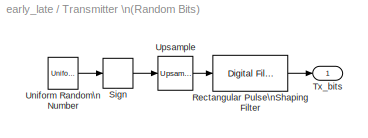
BLOCK [SubSystem] Transmitter \n(Random Bits)
  FunctionWithSeparateData = off
  MaskDescription = This random source has rectangular pulse shaping, and the length of each bit can be specified in samples (this must be an integer).
  MaskEnableString = on
  MaskHideContents = off
  MaskIconFrame = on
  MaskIconOpaque = on
  MaskIconRotate = none
  MaskIconUnits = autoscale
  MaskPromptString = Samples per bit (integer)
  MaskStyleString = edit
  MaskToolTipString = on
  MaskTunableValueString = on
  MaskType = Random Source
  MaskValueString = 20
  MaskVariables = s=@1;
  MaskVisibilityString = on
  MinAlgLoopOccurrences = off
  Ports = [0, 1]
  RTWSystemCode = Auto
BLOCK [Reference] Transmitter \n(Random Bits)/Rectangular Pulse\nShaping Filter  REF=dsparch4/Digital Filter
  AllPoleFiltStruct = Direct form
  BiQuadCoeffs = [1 0.3 0.4 1 0.1 0.2]
  CoeffSource = Specify via dialog
  DenCoeffs = [1 0.1]
  DialogController = dspdialog.DigitalFilter
  DialogControllerArgs = DataTag2
  FIRFiltStruct = Direct form
  FiltPerSampPopup = One filter per frame
  FilterSource = Specify via dialog
  IC = 0
  ICden = 0
  ICnum = 0
  IIRFiltStruct = Direct form II transposed
  LatticeCoeffs = [0.2 0.4]
  LockScale = off
  NumCoeffs = ones(1,s)
  Ports = [1, 1]
  ScaleValues = 1
  SourceBlock = dsparch4/Digital Filter
  SourceType = Digital Filter
  TypePopup = FIR (all zeros)
  accumFracLength = 30
  accumMode = Same as product output
  accumWordLength = 32
  additionalParams = off
  allowOverrides = on
  denIgnore = on
  dfiltObjectName = dfilt.dffir([1 2 1])
  firstCoeffFracLength = 15
  firstCoeffMode = Same word length as input
  firstCoeffWordLength = 16
  memoryFracLength = 15
  memoryMode = Same as accumulator
  memoryWordLength = 16
  multiplicandFracLength = 30
  multiplicandMode = Same as output
  multiplicandWordLength = 32
  outputFracLength = 15
  outputMode = Same as accumulator
  outputWordLength = 16
  overflowMode = off
  prodOutputFracLength = 30
  prodOutputMode = Same as input
  prodOutputWordLength = 32
  roundingMode = Floor
  scaleValueFracLength = 14
  secondCoeffFracLength = 15
  secondCoeffMode = Same as numerator
  secondCoeffWordLength = 16
  showAcc = off
  showCoeff = off
  showMem = off
  showMpy = off
  showOut = off
  stageIOMode = Same as input
  stageIOWordLength = 16
  stageInFracLength = 15
  stageOutFracLength = 15
  tapSumFracLength = 30
  tapSumMode = Same as input
  tapSumWordLength = 32
  thirdCoeffFracLength = 15
  thirdCoeffMode = Same as input
  thirdCoeffWordLength = 16
BLOCK [Signum] Transmitter \n(Random Bits)/Sign
BLOCK [Outport] Transmitter \n(Random Bits)/Tx_bits
  BusOutputAsStruct = off
  IconDisplay = Port number
BLOCK [UniformRandomNumber] Transmitter \n(Random Bits)/Uniform Random\nNumber
  SampleTime = s
  Seed = 546
BLOCK [Reference] Transmitter \n(Random Bits)/Upsample  REF=dspsigops/Upsample
  N = s
  Ports = [1, 1]
  SourceBlock = dspsigops/Upsample
  SourceType = Upsample
  ic = 0
  mode = Maintain input frame size
  phase = 0
BLOCK [ToWorkspace] Tx signal
  MaxDataPoints = inf
  SampleTime = 1
  SaveFormat = Array
  VariableName = tx_signal
BLOCK [ToWorkspace] noise
  MaxDataPoints = inf
  SampleTime = 1
  SaveFormat = Array
  VariableName = noise
ANNOTATION (root): EARLY BRANCH
ANNOTATION (root): Early Late Gate Synchroniser
ANNOTATION (root): LATE BRANCH
ANNOTATION (root): PUNCTUAL BRANCH
ANNOTATION (root): channel
ANNOTATION (root): receiver
ANNOTATION (root): transmitter
LINE AWGN:1 -> noise:1
LINE Add:1 -> Received:1
LINE Delay1:1 -> Gateway Out:1
LINE Delay2:1 -> Loop Filter:2
LINE Delay3:1 -> To Workspace3:1
LINE Delay:1 -> Error = Late - Early:2
LINE Enable:1 -> Numerically Controlled\nClock:2
LINE Error = Late - Early:1 -> Register:- \nTake New Sample:1
LINE Gateway Out:1 -> To Workspace2:1
NET Loop Filter/Add:1 -> Loop Filter/AddSub:2, Loop Filter/Delay:1
LINE Loop Filter/AddSub:1 -> Loop Filter/LoopFilt_Out:1
LINE Loop Filter/Constant:1 -> Loop Filter/Mux:2
LINE Loop Filter/Delay:1 -> Loop Filter/Add:2
NET Loop Filter/Enable:1 -> Loop Filter/Delay:2, Loop Filter/Mux:1
NET Loop Filter/LoopFilt_In:1 -> Loop Filter/alpha:1, Loop Filter/beta:1
LINE Loop Filter/Mux:1 -> Loop Filter/Add:1
LINE Loop Filter/alpha:1 -> Loop Filter/AddSub:1
LINE Loop Filter/beta:1 -> Loop Filter/Mux:3
LINE Loop Filter:1 -> Numerically Controlled\nClock:1
NET Matched Filter :1 -> Delay3:1, Square:1, Square:2
NET Numerically Controlled\nClock/AddSub1:1 -> Numerically Controlled\nClock/To Workspace4:1, Numerically Controlled\nClock/a - b3:1
NET Numerically Controlled\nClock/Constant:1 -> Numerically Controlled\nClock/AddSub1:2, Numerically Controlled\nClock/To Workspace6:1
LINE Numerically Controlled\nClock/Convert:1 -> Numerically Controlled\nClock/AddSub1:1
LINE Numerically Controlled\nClock/Delay1:1 -> Numerically Controlled\nClock/a - b3:2
LINE Numerically Controlled\nClock/Delay2:1 -> Numerically Controlled\nClock/Relational:2
LINE Numerically Controlled\nClock/Enable:1 -> Numerically Controlled\nClock/Delay2:2
LINE Numerically Controlled\nClock/Error In:1 -> Numerically Controlled\nClock/Shift:1
LINE Numerically Controlled\nClock/Relational:1 -> Numerically Controlled\nClock/Sample:1
LINE Numerically Controlled\nClock/Shift:1 -> Numerically Controlled\nClock/Convert:1
NET Numerically Controlled\nClock/a - b3:1 -> Numerically Controlled\nClock/Delay1:1, Numerically Controlled\nClock/Delay2:1, Numerically Controlled\nClock/Relational:1
NET Numerically Controlled\nClock:1 -> Delay1:1, Delay2:1, Register:- \nTake New Sample:2
NET Received:1 -> Matched Filter :1, Rx signal:1
NET Register:- \nTake New Sample:1 -> Loop Filter:1, To Workspace5:1
NET Square:1 -> Delay:1, Error = Late - Early:1
LINE Step:1 -> Enable:1
LINE Transmitter \n(Random Bits)/Rectangular Pulse\nShaping Filter:1 -> Transmitter \n(Random Bits)/Tx_bits:1
LINE Transmitter \n(Random Bits)/Sign:1 -> Transmitter \n(Random Bits)/Upsample:1
LINE Transmitter \n(Random Bits)/Uniform Random\nNumber:1 -> Transmitter \n(Random Bits)/Sign:1
LINE Transmitter \n(Random Bits)/Upsample:1 -> Transmitter \n(Random Bits)/Rectangular Pulse\nShaping Filter:1
NET Transmitter \n(Random Bits):1 -> Add:1, Tx signal:1
note: NET lines group one-source signal fan-out (src -> all destinations, sorted); 1:1 wires keep LINE
